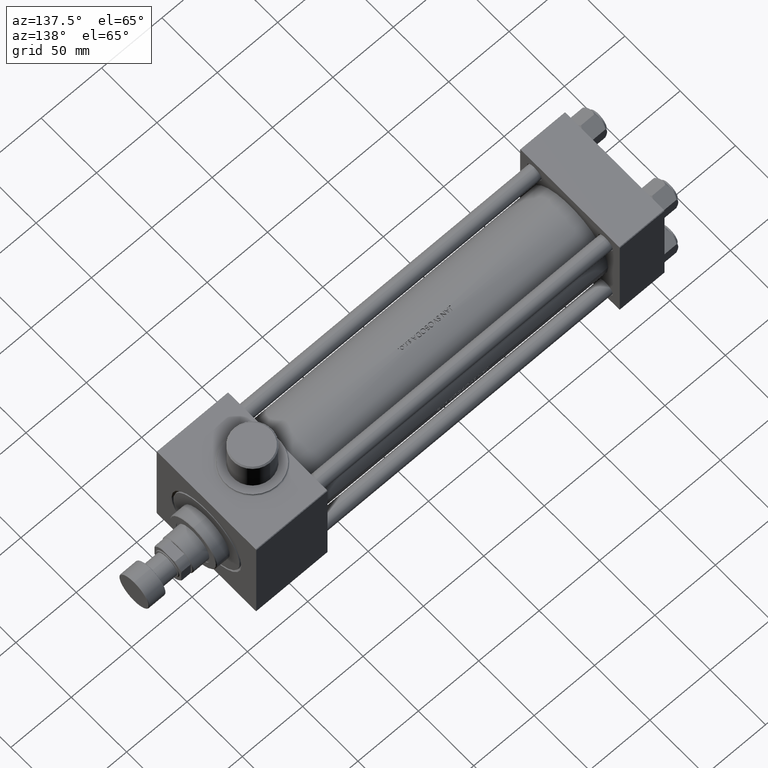
[diagram: clean part render]
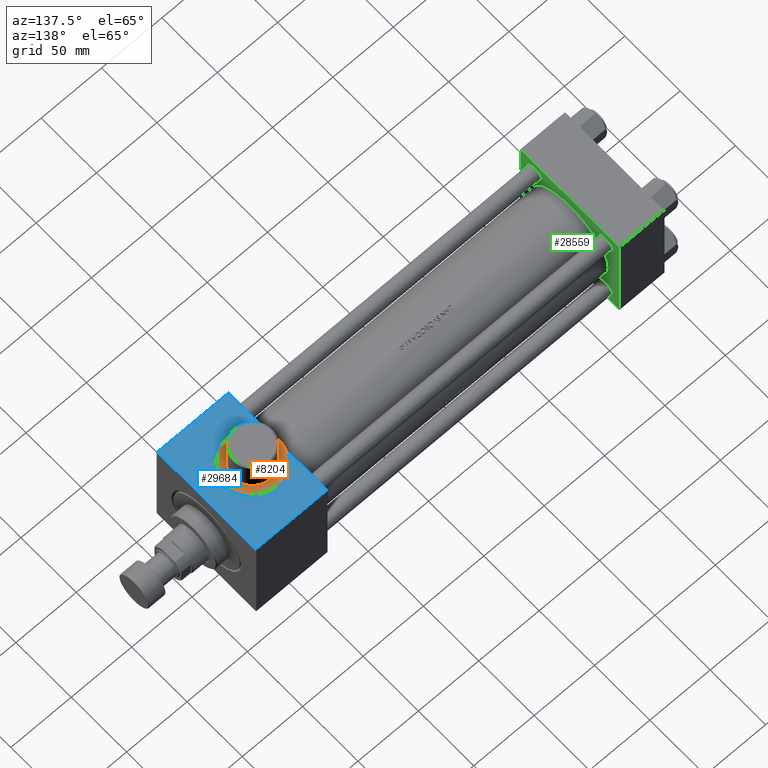
[diagram: same view with three faces highlighted in distinct colors, each labeled with its STEP entity id]
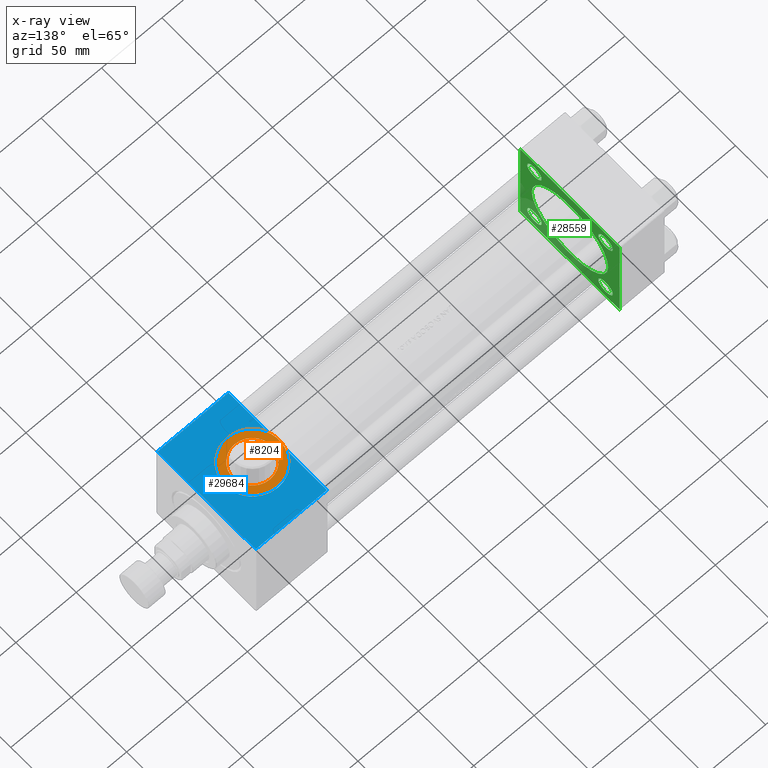
[diagram: x-ray of the same camera — body ghosted, the three highlighted faces saturated]
A machine part, auxiliary view with three faces highlighted in distinct colors.
The next image is the same camera in x-ray (body ghosted, the three faces saturated) — at least one of them is partly hidden behind the body in this view.
Their STEP definitions:

[orange] entity #8204 — the highlighted planar face has unit normal (0, -0, 1).
#1045 = ORIENTED_EDGE ( 'NONE', *, *, #5858, .T. ) ;
#3135 = CIRCLE ( 'NONE', #13777, 22.00000000000001421 ) ;
#3947 = VERTEX_POINT ( 'NONE', #7668 ) ;
#4740 = AXIS2_PLACEMENT_3D ( 'NONE', #27304, #19469, #41822 ) ;
#5160 = PLANE ( 'NONE',  #4740 ) ;
#5858 = EDGE_CURVE ( 'NONE', #3947, #34776, #38101, .T. ) ;
#6403 = EDGE_CURVE ( 'NONE', #40775, #8386, #35107, .T. ) ;
#7668 = CARTESIAN_POINT ( 'NONE',  ( 278.9999999999999432, -45.49999999999999289, -6.557438524301987037 ) ) ;
#7735 = AXIS2_PLACEMENT_3D ( 'NONE', #7820, #25462, #22356 ) ;
#7820 = CARTESIAN_POINT ( 'NONE',  ( 300.0000000000000000, -45.49999999999999289, -8.673617379884004657E-17 ) ) ;
#8204 = ADVANCED_FACE ( 'NONE', ( #33758, #12551 ), #5160, .T. ) ;
#8386 = VERTEX_POINT ( 'NONE', #11335 ) ;
#9236 = AXIS2_PLACEMENT_3D ( 'NONE', #40129, #11793, #43691 ) ;
#9400 = DIRECTION ( 'NONE',  ( 0.000000000000000000, -1.000000000000000000, -8.673617379884036705E-17 ) ) ;
#11335 = CARTESIAN_POINT ( 'NONE',  ( 300.0000000000000000, -45.49999999999999289, 16.00000000000002487 ) ) ;
#11793 = DIRECTION ( 'NONE',  ( 0.000000000000000000, -1.000000000000000000, -8.673617379884036705E-17 ) ) ;
#12283 = AXIS2_PLACEMENT_3D ( 'NONE', #27255, #9400, #13452 ) ;
#12358 = EDGE_LOOP ( 'NONE', ( #22564, #36443 ) ) ;
#12551 = FACE_OUTER_BOUND ( 'NONE', #35300, .T. ) ;
#13147 = DIRECTION ( 'NONE',  ( 0.000000000000000000, 0.000000000000000000, -1.000000000000000000 ) ) ;
#13452 = DIRECTION ( 'NONE',  ( 0.000000000000000000, 0.000000000000000000, -1.000000000000000000 ) ) ;
#13777 = AXIS2_PLACEMENT_3D ( 'NONE', #39250, #35687, #17140 ) ;
#16096 = VERTEX_POINT ( 'NONE', #29292 ) ;
#17140 = DIRECTION ( 'NONE',  ( 0.000000000000000000, 0.000000000000000000, -1.000000000000000000 ) ) ;
#19179 = ORIENTED_EDGE ( 'NONE', *, *, #43632, .T. ) ;
#19469 = DIRECTION ( 'NONE',  ( 0.000000000000000000, -1.000000000000000000, -8.673617379884036705E-17 ) ) ;
#21866 = EDGE_CURVE ( 'NONE', #8386, #40775, #28635, .T. ) ;
#22356 = DIRECTION ( 'NONE',  ( 0.000000000000000000, 0.000000000000000000, -1.000000000000000000 ) ) ;
#22564 = ORIENTED_EDGE ( 'NONE', *, *, #21866, .F. ) ;
#22680 = AXIS2_PLACEMENT_3D ( 'NONE', #28140, #41939, #13147 ) ;
#24453 = CIRCLE ( 'NONE', #9236, 22.00000000000001421 ) ;
#25462 = DIRECTION ( 'NONE',  ( 0.000000000000000000, -1.000000000000000000, -8.673617379884036705E-17 ) ) ;
#26355 = AXIS2_PLACEMENT_3D ( 'NONE', #33261, #37286, #41321 ) ;
#27178 = CARTESIAN_POINT ( 'NONE',  ( 278.9999999999999432, -45.49999999999999289, 6.557438524301985261 ) ) ;
#27255 = CARTESIAN_POINT ( 'NONE',  ( 300.0000000000000000, -45.49999999999999289, -8.673617379884036705E-17 ) ) ;
#27304 = CARTESIAN_POINT ( 'NONE',  ( 300.0000000000000000, -45.49999999999999289, -8.673617379884036705E-17 ) ) ;
#28140 = CARTESIAN_POINT ( 'NONE',  ( 300.0000000000000000, -45.49999999999999289, -8.673617379884036705E-17 ) ) ;
#28635 = CIRCLE ( 'NONE', #26355, 16.00000000000002487 ) ;
#29292 = CARTESIAN_POINT ( 'NONE',  ( 300.0000000000000000, -45.49999999999999289, 22.00000000000001421 ) ) ;
#30835 = ORIENTED_EDGE ( 'NONE', *, *, #35897, .T. ) ;
#33261 = CARTESIAN_POINT ( 'NONE',  ( 300.0000000000000000, -45.49999999999999289, -8.673617379884004657E-17 ) ) ;
#33758 = FACE_BOUND ( 'NONE', #12358, .T. ) ;
#34776 = VERTEX_POINT ( 'NONE', #42819 ) ;
#35107 = CIRCLE ( 'NONE', #7735, 16.00000000000002487 ) ;
#35300 = EDGE_LOOP ( 'NONE', ( #30835, #1045, #40563, #19179 ) ) ;
#35687 = DIRECTION ( 'NONE',  ( 0.000000000000000000, -1.000000000000000000, -8.673617379884036705E-17 ) ) ;
#35897 = EDGE_CURVE ( 'NONE', #44356, #3947, #37880, .T. ) ;
#36443 = ORIENTED_EDGE ( 'NONE', *, *, #6403, .F. ) ;
#37286 = DIRECTION ( 'NONE',  ( 0.000000000000000000, -1.000000000000000000, -8.673617379884036705E-17 ) ) ;
#37683 = CARTESIAN_POINT ( 'NONE',  ( 300.0000000000000000, -45.49999999999999289, -16.00000000000002487 ) ) ;
#37880 = CIRCLE ( 'NONE', #22680, 22.00000000000001421 ) ;
#38101 = CIRCLE ( 'NONE', #12283, 22.00000000000001421 ) ;
#39250 = CARTESIAN_POINT ( 'NONE',  ( 300.0000000000000000, -45.49999999999999289, -8.673617379884036705E-17 ) ) ;
#40129 = CARTESIAN_POINT ( 'NONE',  ( 300.0000000000000000, -45.49999999999999289, -8.673617379884036705E-17 ) ) ;
#40563 = ORIENTED_EDGE ( 'NONE', *, *, #44046, .T. ) ;
#40775 = VERTEX_POINT ( 'NONE', #37683 ) ;
#41321 = DIRECTION ( 'NONE',  ( 0.000000000000000000, 0.000000000000000000, -1.000000000000000000 ) ) ;
#41822 = DIRECTION ( 'NONE',  ( 0.000000000000000000, 8.673617379884036705E-17, -1.000000000000000000 ) ) ;
#41939 = DIRECTION ( 'NONE',  ( 0.000000000000000000, -1.000000000000000000, -8.673617379884036705E-17 ) ) ;
#42819 = CARTESIAN_POINT ( 'NONE',  ( 300.0000000000000000, -45.49999999999999289, -22.00000000000001421 ) ) ;
#43632 = EDGE_CURVE ( 'NONE', #16096, #44356, #3135, .T. ) ;
#43691 = DIRECTION ( 'NONE',  ( 0.000000000000000000, 0.000000000000000000, -1.000000000000000000 ) ) ;
#44046 = EDGE_CURVE ( 'NONE', #34776, #16096, #24453, .T. ) ;
#44356 = VERTEX_POINT ( 'NONE', #27178 ) ;

[blue] entity #29684 — the highlighted planar face has unit normal (0, 0, -1).
#798 = ORIENTED_EDGE ( 'NONE', *, *, #31618, .T. ) ;
#1246 = CARTESIAN_POINT ( 'NONE',  ( 300.0000000000000000, -44.49999999999999289, -23.00000000000001421 ) ) ;
#1881 = LINE ( 'NONE', #13066, #14263 ) ;
#2283 = FACE_OUTER_BOUND ( 'NONE', #16467, .T. ) ;
#2336 = VERTEX_POINT ( 'NONE', #18076 ) ;
#2723 = DIRECTION ( 'NONE',  ( 0.000000000000000000, 0.000000000000000000, -1.000000000000000000 ) ) ;
#4877 = DIRECTION ( 'NONE',  ( 0.000000000000000000, 0.000000000000000000, -1.000000000000000000 ) ) ;
#6291 = LINE ( 'NONE', #10575, #26477 ) ;
#7451 = CARTESIAN_POINT ( 'NONE',  ( 300.0000000000000000, -44.49999999999999289, -8.673617379884036705E-17 ) ) ;
#7838 = VERTEX_POINT ( 'NONE', #18824 ) ;
#8434 = EDGE_CURVE ( 'NONE', #26448, #27020, #12728, .T. ) ;
#9418 = DIRECTION ( 'NONE',  ( 0.000000000000000000, -0.000000000000000000, 1.000000000000000000 ) ) ;
#10575 = CARTESIAN_POINT ( 'NONE',  ( 278.9999999999999432, -44.49999999999999289, 44.99999999999999289 ) ) ;
#11007 = CARTESIAN_POINT ( 'NONE',  ( 278.9999999999999432, -44.49999999999999289, -9.380831519646823935 ) ) ;
#11887 = ORIENTED_EDGE ( 'NONE', *, *, #36809, .T. ) ;
#12591 = CIRCLE ( 'NONE', #17915, 23.00000000000001421 ) ;
#12728 = LINE ( 'NONE', #41064, #24543 ) ;
#12983 = ORIENTED_EDGE ( 'NONE', *, *, #36493, .T. ) ;
#13066 = CARTESIAN_POINT ( 'NONE',  ( 337.9999999999999432, -44.49999999999999289, 44.49999999999999289 ) ) ;
#13630 = DIRECTION ( 'NONE',  ( 0.000000000000000000, 0.000000000000000000, 1.000000000000000000 ) ) ;
#13797 = DIRECTION ( 'NONE',  ( -0.000000000000000000, 1.000000000000000000, 0.000000000000000000 ) ) ;
#14263 = VECTOR ( 'NONE', #37585, 1000.000000000000000 ) ;
#14423 = CARTESIAN_POINT ( 'NONE',  ( 300.0000000000000000, -44.49999999999999289, 23.00000000000001421 ) ) ;
#15106 = VECTOR ( 'NONE', #32431, 1000.000000000000000 ) ;
#16467 = EDGE_LOOP ( 'NONE', ( #24595, #19307, #798, #30876, #12983, #11887, #30400, #23972 ) ) ;
#16511 = EDGE_CURVE ( 'NONE', #7838, #43596, #45073, .T. ) ;
#16742 = DIRECTION ( 'NONE',  ( -0.000000000000000000, 1.000000000000000000, 0.000000000000000000 ) ) ;
#17915 = AXIS2_PLACEMENT_3D ( 'NONE', #7451, #20649, #46093 ) ;
#18076 = CARTESIAN_POINT ( 'NONE',  ( 278.9999999999999432, -44.49999999999999289, -44.49999999999999289 ) ) ;
#18824 = CARTESIAN_POINT ( 'NONE',  ( 278.9999999999999432, -44.49999999999999289, 44.49999999999999289 ) ) ;
#19307 = ORIENTED_EDGE ( 'NONE', *, *, #20202, .T. ) ;
#19499 = VERTEX_POINT ( 'NONE', #1246 ) ;
#20202 = EDGE_CURVE ( 'NONE', #43596, #29739, #12591, .T. ) ;
#20266 = CARTESIAN_POINT ( 'NONE',  ( 337.9999999999999432, -44.49999999999999289, 44.49999999999999289 ) ) ;
#20649 = DIRECTION ( 'NONE',  ( -0.000000000000000000, 1.000000000000000000, 0.000000000000000000 ) ) ;
#20863 = CARTESIAN_POINT ( 'NONE',  ( 337.9999999999999432, -44.49999999999999289, 44.99999999999999289 ) ) ;
#21097 = DIRECTION ( 'NONE',  ( -0.000000000000000000, 1.000000000000000000, 0.000000000000000000 ) ) ;
#21171 = CARTESIAN_POINT ( 'NONE',  ( 278.9999999999999432, -44.49999999999999289, 9.380831519646866568 ) ) ;
#21477 = LINE ( 'NONE', #28851, #15106 ) ;
#23519 = AXIS2_PLACEMENT_3D ( 'NONE', #46225, #16742, #13630 ) ;
#23972 = ORIENTED_EDGE ( 'NONE', *, *, #33813, .T. ) ;
#24285 = CIRCLE ( 'NONE', #23519, 23.00000000000001421 ) ;
#24543 = VECTOR ( 'NONE', #4877, 1000.000000000000000 ) ;
#24595 = ORIENTED_EDGE ( 'NONE', *, *, #16511, .T. ) ;
#26110 = VERTEX_POINT ( 'NONE', #11007 ) ;
#26382 = AXIS2_PLACEMENT_3D ( 'NONE', #20863, #21097, #9418 ) ;
#26448 = VERTEX_POINT ( 'NONE', #20266 ) ;
#26477 = VECTOR ( 'NONE', #2723, 1000.000000000000000 ) ;
#27020 = VERTEX_POINT ( 'NONE', #38223 ) ;
#28851 = CARTESIAN_POINT ( 'NONE',  ( 337.9999999999999432, -44.49999999999999289, -44.50000000000002132 ) ) ;
#29522 = CIRCLE ( 'NONE', #44677, 23.00000000000001421 ) ;
#29684 = ADVANCED_FACE ( 'NONE', ( #2283 ), #46541, .F. ) ;
#29739 = VERTEX_POINT ( 'NONE', #14423 ) ;
#30400 = ORIENTED_EDGE ( 'NONE', *, *, #8434, .F. ) ;
#30876 = ORIENTED_EDGE ( 'NONE', *, *, #38528, .T. ) ;
#31282 = CARTESIAN_POINT ( 'NONE',  ( 278.9999999999999432, -44.49999999999999289, 44.99999999999999289 ) ) ;
#31618 = EDGE_CURVE ( 'NONE', #29739, #19499, #29522, .T. ) ;
#32431 = DIRECTION ( 'NONE',  ( 1.000000000000000000, 0.000000000000000000, 0.000000000000000000 ) ) ;
#33813 = EDGE_CURVE ( 'NONE', #26448, #7838, #1881, .T. ) ;
#36493 = EDGE_CURVE ( 'NONE', #26110, #2336, #6291, .T. ) ;
#36809 = EDGE_CURVE ( 'NONE', #2336, #27020, #21477, .T. ) ;
#37585 = DIRECTION ( 'NONE',  ( -1.000000000000000000, 0.000000000000000000, 0.000000000000000000 ) ) ;
#38223 = CARTESIAN_POINT ( 'NONE',  ( 337.9999999999999432, -44.49999999999999289, -44.49999999999999289 ) ) ;
#38528 = EDGE_CURVE ( 'NONE', #19499, #26110, #24285, .T. ) ;
#39105 = VECTOR ( 'NONE', #42223, 1000.000000000000000 ) ;
#41064 = CARTESIAN_POINT ( 'NONE',  ( 337.9999999999999432, -44.49999999999999289, 44.99999999999999289 ) ) ;
#42223 = DIRECTION ( 'NONE',  ( 0.000000000000000000, 0.000000000000000000, -1.000000000000000000 ) ) ;
#43527 = DIRECTION ( 'NONE',  ( 0.000000000000000000, 0.000000000000000000, 1.000000000000000000 ) ) ;
#43596 = VERTEX_POINT ( 'NONE', #21171 ) ;
#44677 = AXIS2_PLACEMENT_3D ( 'NONE', #46394, #13797, #43527 ) ;
#45073 = LINE ( 'NONE', #31282, #39105 ) ;
#46093 = DIRECTION ( 'NONE',  ( 0.000000000000000000, 0.000000000000000000, 1.000000000000000000 ) ) ;
#46225 = CARTESIAN_POINT ( 'NONE',  ( 300.0000000000000000, -44.49999999999999289, -8.673617379884036705E-17 ) ) ;
#46394 = CARTESIAN_POINT ( 'NONE',  ( 300.0000000000000000, -44.49999999999999289, -8.673617379884036705E-17 ) ) ;
#46541 = PLANE ( 'NONE',  #26382 ) ;

[green] entity #28559 — the highlighted planar face has unit normal (-1, 0, -0).
#283 = VERTEX_POINT ( 'NONE', #14545 ) ;
#376 = ORIENTED_EDGE ( 'NONE', *, *, #15225, .T. ) ;
#715 = EDGE_LOOP ( 'NONE', ( #34680, #16567, #11827, #31249, #33239, #39388, #23594, #36980 ) ) ;
#747 = EDGE_CURVE ( 'NONE', #22977, #41363, #8951, .T. ) ;
#965 = VECTOR ( 'NONE', #33827, 1000.000000000000114 ) ;
#1271 = VERTEX_POINT ( 'NONE', #37822 ) ;
#1331 = LINE ( 'NONE', #34184, #25320 ) ;
#1497 = DIRECTION ( 'NONE',  ( 0.000000000000000000, 0.000000000000000000, 1.000000000000000000 ) ) ;
#1658 = EDGE_CURVE ( 'NONE', #7887, #283, #38763, .T. ) ;
#1896 = CARTESIAN_POINT ( 'NONE',  ( 37.00000000000000000, -32.14999999999997726, 38.65000000000004832 ) ) ;
#2214 = VERTEX_POINT ( 'NONE', #24051 ) ;
#2241 = EDGE_LOOP ( 'NONE', ( #19465, #376 ) ) ;
#3313 = CARTESIAN_POINT ( 'NONE',  ( 37.00000000000000000, 32.14999999999999147, -38.65000000000011937 ) ) ;
#3377 = EDGE_CURVE ( 'NONE', #34010, #41363, #4447, .T. ) ;
#3532 = EDGE_CURVE ( 'NONE', #1271, #15160, #16044, .T. ) ;
#4413 = DIRECTION ( 'NONE',  ( 0.000000000000000000, 0.000000000000000000, 1.000000000000000000 ) ) ;
#4447 = LINE ( 'NONE', #21853, #25861 ) ;
#5140 = DIRECTION ( 'NONE',  ( 0.000000000000000000, 0.000000000000000000, 1.000000000000000000 ) ) ;
#5324 = CIRCLE ( 'NONE', #44105, 6.500000000000033751 ) ;
#5889 = FACE_BOUND ( 'NONE', #37188, .T. ) ;
#6261 = DIRECTION ( 'NONE',  ( 0.000000000000000000, -1.000000000000000000, -1.541976423090495633E-16 ) ) ;
#6474 = VERTEX_POINT ( 'NONE', #28271 ) ;
#6556 = CARTESIAN_POINT ( 'NONE',  ( 37.00000000000000000, -32.14999999999997726, -25.64999999999997726 ) ) ;
#6704 = CARTESIAN_POINT ( 'NONE',  ( 37.00000000000000000, -45.00000000000000711, 45.00000000000000000 ) ) ;
#7094 = CARTESIAN_POINT ( 'NONE',  ( 37.00000000000000000, 44.99999999999998579, 44.50000000000001421 ) ) ;
#7279 = DIRECTION ( 'NONE',  ( -1.000000000000000000, 0.000000000000000000, -0.000000000000000000 ) ) ;
#7876 = LINE ( 'NONE', #8331, #965 ) ;
#7887 = VERTEX_POINT ( 'NONE', #1896 ) ;
#7986 = DIRECTION ( 'NONE',  ( -1.000000000000000000, 0.000000000000000000, -0.000000000000000000 ) ) ;
#8096 = AXIS2_PLACEMENT_3D ( 'NONE', #9177, #38449, #34897 ) ;
#8331 = CARTESIAN_POINT ( 'NONE',  ( 37.00000000000000000, 44.49999999999998579, 45.00000000000001421 ) ) ;
#8924 = DIRECTION ( 'NONE',  ( 0.000000000000000000, -1.000000000000000000, -1.541976423090495387E-16 ) ) ;
#8951 = LINE ( 'NONE', #41812, #27313 ) ;
#9045 = CARTESIAN_POINT ( 'NONE',  ( 37.00000000000000000, -45.00000000000000711, 44.49999999999997158 ) ) ;
#9177 = CARTESIAN_POINT ( 'NONE',  ( 37.00000000000000000, 32.14999999999999147, 32.15000000000000568 ) ) ;
#9598 = LINE ( 'NONE', #24376, #33939 ) ;
#9704 = FACE_BOUND ( 'NONE', #2241, .T. ) ;
#10580 = EDGE_CURVE ( 'NONE', #23628, #18836, #12935, .T. ) ;
#11439 = EDGE_CURVE ( 'NONE', #36844, #25144, #19616, .T. ) ;
#11715 = CIRCLE ( 'NONE', #43648, 6.500000000000117240 ) ;
#11786 = DIRECTION ( 'NONE',  ( -1.000000000000000000, 0.000000000000000000, -0.000000000000000000 ) ) ;
#11827 = ORIENTED_EDGE ( 'NONE', *, *, #3377, .F. ) ;
#12935 = LINE ( 'NONE', #30552, #38931 ) ;
#13103 = EDGE_CURVE ( 'NONE', #28429, #36844, #1331, .T. ) ;
#13290 = DIRECTION ( 'NONE',  ( -1.000000000000000000, 0.000000000000000000, -0.000000000000000000 ) ) ;
#13512 = DIRECTION ( 'NONE',  ( 0.000000000000000000, 0.000000000000000000, 1.000000000000000000 ) ) ;
#13614 = AXIS2_PLACEMENT_3D ( 'NONE', #45278, #45046, #1497 ) ;
#14545 = CARTESIAN_POINT ( 'NONE',  ( 37.00000000000000000, -32.14999999999997726, 25.64999999999997726 ) ) ;
#15160 = VERTEX_POINT ( 'NONE', #45072 ) ;
#15225 = EDGE_CURVE ( 'NONE', #6474, #38873, #35278, .T. ) ;
#15574 = DIRECTION ( 'NONE',  ( 0.000000000000000000, 0.000000000000000000, 1.000000000000000000 ) ) ;
#16034 = DIRECTION ( 'NONE',  ( 1.000000000000000000, -0.000000000000000000, 0.000000000000000000 ) ) ;
#16044 = CIRCLE ( 'NONE', #29700, 34.49999999999999289 ) ;
#16375 = EDGE_CURVE ( 'NONE', #28128, #19702, #11715, .T. ) ;
#16523 = DIRECTION ( 'NONE',  ( 0.000000000000000000, 0.7071067811865474617, -0.7071067811865474617 ) ) ;
#16535 = DIRECTION ( 'NONE',  ( -1.000000000000000000, 0.000000000000000000, -0.000000000000000000 ) ) ;
#16567 = ORIENTED_EDGE ( 'NONE', *, *, #747, .T. ) ;
#16837 = DIRECTION ( 'NONE',  ( -0.000000000000000000, 0.7071067811865474617, 0.7071067811865474617 ) ) ;
#16868 = CARTESIAN_POINT ( 'NONE',  ( 37.00000000000000000, 0.000000000000000000, 0.000000000000000000 ) ) ;
#17981 = CARTESIAN_POINT ( 'NONE',  ( 37.00000000000000000, -32.14999999999997726, 32.15000000000001279 ) ) ;
#18144 = LINE ( 'NONE', #6704, #22752 ) ;
#18257 = AXIS2_PLACEMENT_3D ( 'NONE', #43698, #7279, #35632 ) ;
#18836 = VERTEX_POINT ( 'NONE', #43564 ) ;
#18980 = AXIS2_PLACEMENT_3D ( 'NONE', #35185, #42544, #13512 ) ;
#19397 = DIRECTION ( 'NONE',  ( 0.000000000000000000, 0.000000000000000000, 1.000000000000000000 ) ) ;
#19465 = ORIENTED_EDGE ( 'NONE', *, *, #37516, .T. ) ;
#19616 = LINE ( 'NONE', #34136, #29055 ) ;
#19652 = CIRCLE ( 'NONE', #35633, 6.500000000000033751 ) ;
#19702 = VERTEX_POINT ( 'NONE', #32643 ) ;
#20440 = FACE_BOUND ( 'NONE', #35091, .T. ) ;
#21084 = DIRECTION ( 'NONE',  ( 0.000000000000000000, 0.000000000000000000, 1.000000000000000000 ) ) ;
#21250 = DIRECTION ( 'NONE',  ( 0.000000000000000000, 7.709882115452476934E-17, -1.000000000000000000 ) ) ;
#21853 = CARTESIAN_POINT ( 'NONE',  ( 37.00000000000000000, 44.99999999999998579, 45.00000000000001421 ) ) ;
#21946 = EDGE_CURVE ( 'NONE', #19702, #28128, #32451, .T. ) ;
#22752 = VECTOR ( 'NONE', #21250, 1000.000000000000000 ) ;
#22835 = EDGE_CURVE ( 'NONE', #22977, #18836, #9598, .T. ) ;
#22977 = VERTEX_POINT ( 'NONE', #32224 ) ;
#23219 = ORIENTED_EDGE ( 'NONE', *, *, #1658, .T. ) ;
#23227 = ORIENTED_EDGE ( 'NONE', *, *, #21946, .T. ) ;
#23476 = CARTESIAN_POINT ( 'NONE',  ( 37.00000000000000711, -3.469446951953614189E-15, 0.000000000000000000 ) ) ;
#23594 = ORIENTED_EDGE ( 'NONE', *, *, #38630, .T. ) ;
#23628 = VERTEX_POINT ( 'NONE', #39654 ) ;
#24010 = FACE_BOUND ( 'NONE', #35011, .T. ) ;
#24051 = CARTESIAN_POINT ( 'NONE',  ( 37.00000000000000000, -32.14999999999997726, -38.65000000000004832 ) ) ;
#24376 = CARTESIAN_POINT ( 'NONE',  ( 37.00000000000000000, 44.99999999999998579, -44.99999999999998579 ) ) ;
#24877 = AXIS2_PLACEMENT_3D ( 'NONE', #16868, #13290, #27811 ) ;
#24950 = FACE_BOUND ( 'NONE', #42924, .T. ) ;
#25050 = ORIENTED_EDGE ( 'NONE', *, *, #16375, .T. ) ;
#25066 = CIRCLE ( 'NONE', #18980, 6.500000000000033751 ) ;
#25144 = VERTEX_POINT ( 'NONE', #9045 ) ;
#25285 = CARTESIAN_POINT ( 'NONE',  ( 37.00000000000000000, -44.49999999999995737, 45.00000000000000000 ) ) ;
#25320 = VECTOR ( 'NONE', #8924, 1000.000000000000000 ) ;
#25390 = AXIS2_PLACEMENT_3D ( 'NONE', #27473, #16535, #41982 ) ;
#25861 = VECTOR ( 'NONE', #37058, 1000.000000000000000 ) ;
#26914 = CARTESIAN_POINT ( 'NONE',  ( 37.00000000000000000, 32.14999999999999147, 38.65000000000011937 ) ) ;
#27313 = VECTOR ( 'NONE', #16837, 1000.000000000000114 ) ;
#27473 = CARTESIAN_POINT ( 'NONE',  ( 37.00000000000000000, 32.14999999999999147, -32.15000000000000568 ) ) ;
#27811 = DIRECTION ( 'NONE',  ( -0.000000000000000000, 0.000000000000000000, 1.000000000000000000 ) ) ;
#28128 = VERTEX_POINT ( 'NONE', #26914 ) ;
#28271 = CARTESIAN_POINT ( 'NONE',  ( 37.00000000000000000, 32.14999999999999147, -25.64999999999988844 ) ) ;
#28429 = VERTEX_POINT ( 'NONE', #30905 ) ;
#28559 = ADVANCED_FACE ( 'NONE', ( #24010, #9704, #5889, #24950, #20440, #31619 ), #34955, .F. ) ;
#29055 = VECTOR ( 'NONE', #30557, 1000.000000000000114 ) ;
#29699 = VERTEX_POINT ( 'NONE', #6556 ) ;
#29700 = AXIS2_PLACEMENT_3D ( 'NONE', #23476, #37747, #5140 ) ;
#30552 = CARTESIAN_POINT ( 'NONE',  ( 37.00000000000000000, -44.49999999999998579, -45.00000000000000000 ) ) ;
#30554 = CARTESIAN_POINT ( 'NONE',  ( 37.00000000000000000, 44.99999999999998579, -44.49999999999995737 ) ) ;
#30557 = DIRECTION ( 'NONE',  ( -0.000000000000000000, -0.7071067811865425767, -0.7071067811865524577 ) ) ;
#30905 = CARTESIAN_POINT ( 'NONE',  ( 37.00000000000000000, 44.49999999999998579, 45.00000000000001421 ) ) ;
#31021 = ORIENTED_EDGE ( 'NONE', *, *, #46628, .F. ) ;
#31249 = ORIENTED_EDGE ( 'NONE', *, *, #46377, .T. ) ;
#31619 = FACE_OUTER_BOUND ( 'NONE', #715, .T. ) ;
#32224 = CARTESIAN_POINT ( 'NONE',  ( 37.00000000000000000, 44.49999999999998579, -44.99999999999998579 ) ) ;
#32451 = CIRCLE ( 'NONE', #8096, 6.500000000000117240 ) ;
#32643 = CARTESIAN_POINT ( 'NONE',  ( 37.00000000000000000, 32.14999999999999147, 25.64999999999988844 ) ) ;
#33239 = ORIENTED_EDGE ( 'NONE', *, *, #13103, .T. ) ;
#33827 = DIRECTION ( 'NONE',  ( 0.000000000000000000, -0.7071067811865474617, 0.7071067811865474617 ) ) ;
#33939 = VECTOR ( 'NONE', #6261, 1000.000000000000000 ) ;
#34010 = VERTEX_POINT ( 'NONE', #7094 ) ;
#34128 = CIRCLE ( 'NONE', #13614, 6.500000000000117240 ) ;
#34136 = CARTESIAN_POINT ( 'NONE',  ( 37.00000000000000000, -45.00000000000000711, 44.49999999999997158 ) ) ;
#34184 = CARTESIAN_POINT ( 'NONE',  ( 37.00000000000000000, 44.99999999999998579, 45.00000000000001421 ) ) ;
#34680 = ORIENTED_EDGE ( 'NONE', *, *, #22835, .F. ) ;
#34897 = DIRECTION ( 'NONE',  ( 0.000000000000000000, 0.000000000000000000, 1.000000000000000000 ) ) ;
#34955 = PLANE ( 'NONE',  #24877 ) ;
#35011 = EDGE_LOOP ( 'NONE', ( #37154, #41087 ) ) ;
#35091 = EDGE_LOOP ( 'NONE', ( #45042, #31021 ) ) ;
#35185 = CARTESIAN_POINT ( 'NONE',  ( 37.00000000000000000, -32.14999999999997726, -32.15000000000001279 ) ) ;
#35278 = CIRCLE ( 'NONE', #25390, 6.500000000000117240 ) ;
#35632 = DIRECTION ( 'NONE',  ( 0.000000000000000000, 0.000000000000000000, 1.000000000000000000 ) ) ;
#35633 = AXIS2_PLACEMENT_3D ( 'NONE', #40611, #7986, #4413 ) ;
#35937 = CIRCLE ( 'NONE', #42001, 34.49999999999999289 ) ;
#36223 = ORIENTED_EDGE ( 'NONE', *, *, #40626, .T. ) ;
#36363 = EDGE_CURVE ( 'NONE', #2214, #29699, #19652, .T. ) ;
#36844 = VERTEX_POINT ( 'NONE', #25285 ) ;
#36980 = ORIENTED_EDGE ( 'NONE', *, *, #10580, .T. ) ;
#37058 = DIRECTION ( 'NONE',  ( 0.000000000000000000, 0.000000000000000000, -1.000000000000000000 ) ) ;
#37154 = ORIENTED_EDGE ( 'NONE', *, *, #36363, .T. ) ;
#37188 = EDGE_LOOP ( 'NONE', ( #36223, #23219 ) ) ;
#37446 = CARTESIAN_POINT ( 'NONE',  ( 37.00000000000000711, -3.469446951953614189E-15, 0.000000000000000000 ) ) ;
#37516 = EDGE_CURVE ( 'NONE', #38873, #6474, #34128, .T. ) ;
#37747 = DIRECTION ( 'NONE',  ( 1.000000000000000000, -0.000000000000000000, 0.000000000000000000 ) ) ;
#37822 = CARTESIAN_POINT ( 'NONE',  ( 37.00000000000000711, -3.469446951953614189E-15, 34.49999999999999289 ) ) ;
#38449 = DIRECTION ( 'NONE',  ( -1.000000000000000000, 0.000000000000000000, -0.000000000000000000 ) ) ;
#38630 = EDGE_CURVE ( 'NONE', #25144, #23628, #18144, .T. ) ;
#38763 = CIRCLE ( 'NONE', #18257, 6.500000000000033751 ) ;
#38873 = VERTEX_POINT ( 'NONE', #3313 ) ;
#38931 = VECTOR ( 'NONE', #16523, 1000.000000000000114 ) ;
#39241 = EDGE_CURVE ( 'NONE', #29699, #2214, #25066, .T. ) ;
#39388 = ORIENTED_EDGE ( 'NONE', *, *, #11439, .T. ) ;
#39654 = CARTESIAN_POINT ( 'NONE',  ( 37.00000000000000000, -45.00000000000000000, -44.49999999999995737 ) ) ;
#40611 = CARTESIAN_POINT ( 'NONE',  ( 37.00000000000000000, -32.14999999999997726, -32.15000000000001279 ) ) ;
#40626 = EDGE_CURVE ( 'NONE', #283, #7887, #5324, .T. ) ;
#41087 = ORIENTED_EDGE ( 'NONE', *, *, #39241, .T. ) ;
#41363 = VERTEX_POINT ( 'NONE', #30554 ) ;
#41812 = CARTESIAN_POINT ( 'NONE',  ( 37.00000000000000000, 44.99999999999998579, -44.49999999999998579 ) ) ;
#41982 = DIRECTION ( 'NONE',  ( 0.000000000000000000, 0.000000000000000000, 1.000000000000000000 ) ) ;
#42001 = AXIS2_PLACEMENT_3D ( 'NONE', #37446, #16034, #15574 ) ;
#42544 = DIRECTION ( 'NONE',  ( -1.000000000000000000, 0.000000000000000000, -0.000000000000000000 ) ) ;
#42924 = EDGE_LOOP ( 'NONE', ( #23227, #25050 ) ) ;
#43425 = DIRECTION ( 'NONE',  ( -1.000000000000000000, 0.000000000000000000, -0.000000000000000000 ) ) ;
#43564 = CARTESIAN_POINT ( 'NONE',  ( 37.00000000000000000, -44.49999999999995737, -45.00000000000000000 ) ) ;
#43648 = AXIS2_PLACEMENT_3D ( 'NONE', #44382, #11786, #19397 ) ;
#43698 = CARTESIAN_POINT ( 'NONE',  ( 37.00000000000000000, -32.14999999999997726, 32.15000000000001279 ) ) ;
#44105 = AXIS2_PLACEMENT_3D ( 'NONE', #17981, #43425, #21084 ) ;
#44382 = CARTESIAN_POINT ( 'NONE',  ( 37.00000000000000000, 32.14999999999999147, 32.15000000000000568 ) ) ;
#45042 = ORIENTED_EDGE ( 'NONE', *, *, #3532, .F. ) ;
#45046 = DIRECTION ( 'NONE',  ( -1.000000000000000000, 0.000000000000000000, -0.000000000000000000 ) ) ;
#45072 = CARTESIAN_POINT ( 'NONE',  ( 37.00000000000000711, 7.555845051047534515E-16, -34.49999999999999289 ) ) ;
#45278 = CARTESIAN_POINT ( 'NONE',  ( 37.00000000000000000, 32.14999999999999147, -32.15000000000000568 ) ) ;
#46377 = EDGE_CURVE ( 'NONE', #34010, #28429, #7876, .T. ) ;
#46628 = EDGE_CURVE ( 'NONE', #15160, #1271, #35937, .T. ) ;